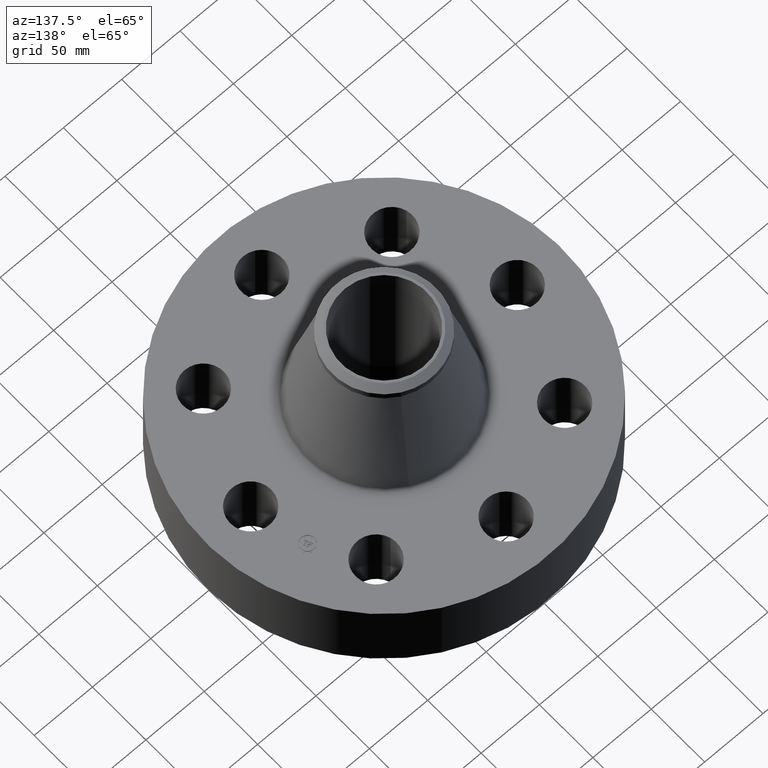
[diagram: clean part render]
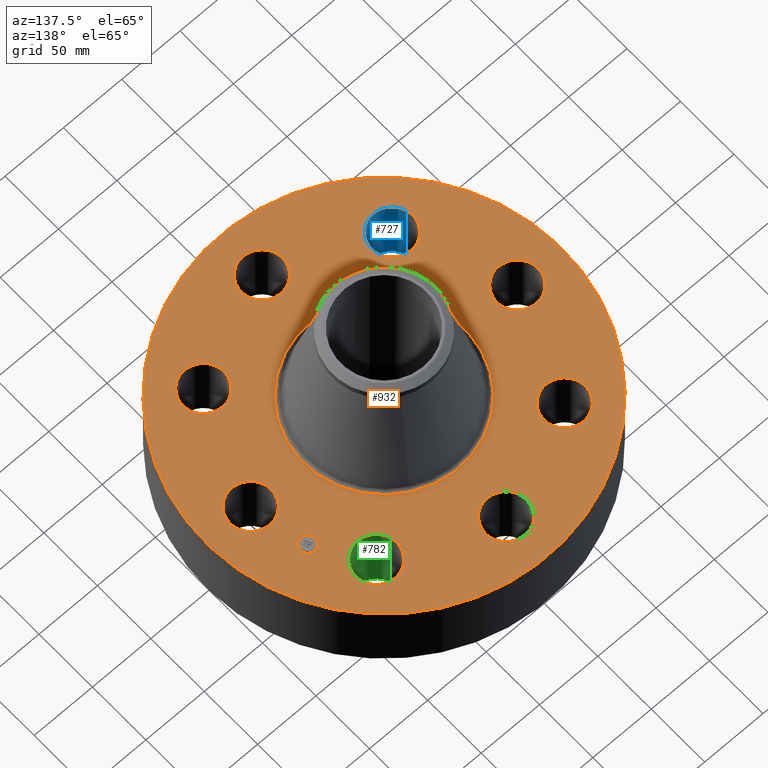
[diagram: same view with three faces highlighted in distinct colors, each labeled with its STEP entity id]
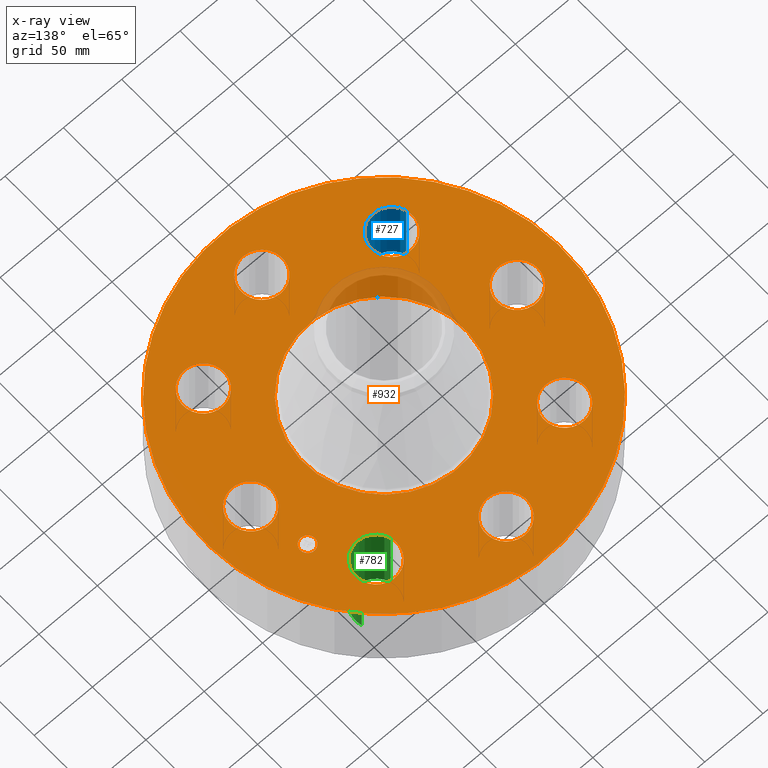
[diagram: x-ray of the same camera — body ghosted, the three highlighted faces saturated]
A machine part, auxiliary view with three faces highlighted in distinct colors.
The next image is the same camera in x-ray (body ghosted, the three faces saturated) — at least one of them is partly hidden behind the body in this view.
Their STEP definitions:

[orange] entity #932 — the highlighted planar face has unit normal (0, 0, -1).
#65=AXIS2_PLACEMENT_3D('Circle Axis2P3D',#63,#64,$) ;
#82=AXIS2_PLACEMENT_3D('Circle Axis2P3D',#80,#81,$) ;
#115=AXIS2_PLACEMENT_3D('Circle Axis2P3D',#113,#114,$) ;
#139=AXIS2_PLACEMENT_3D('Circle Axis2P3D',#137,#138,$) ;
#156=AXIS2_PLACEMENT_3D('Circle Axis2P3D',#154,#155,$) ;
#191=AXIS2_PLACEMENT_3D('Circle Axis2P3D',#189,#190,$) ;
#589=AXIS2_PLACEMENT_3D('Circle Axis2P3D',#587,#588,$) ;
#601=AXIS2_PLACEMENT_3D('Circle Axis2P3D',#599,#600,$) ;
#632=AXIS2_PLACEMENT_3D('Circle Axis2P3D',#630,#631,$) ;
#644=AXIS2_PLACEMENT_3D('Circle Axis2P3D',#642,#643,$) ;
#675=AXIS2_PLACEMENT_3D('Circle Axis2P3D',#673,#674,$) ;
#687=AXIS2_PLACEMENT_3D('Circle Axis2P3D',#685,#686,$) ;
#718=AXIS2_PLACEMENT_3D('Circle Axis2P3D',#716,#717,$) ;
#730=AXIS2_PLACEMENT_3D('Circle Axis2P3D',#728,#729,$) ;
#761=AXIS2_PLACEMENT_3D('Circle Axis2P3D',#759,#760,$) ;
#773=AXIS2_PLACEMENT_3D('Circle Axis2P3D',#771,#772,$) ;
#804=AXIS2_PLACEMENT_3D('Circle Axis2P3D',#802,#803,$) ;
#816=AXIS2_PLACEMENT_3D('Circle Axis2P3D',#814,#815,$) ;
#847=AXIS2_PLACEMENT_3D('Circle Axis2P3D',#845,#846,$) ;
#859=AXIS2_PLACEMENT_3D('Circle Axis2P3D',#857,#858,$) ;
#872=AXIS2_PLACEMENT_3D('Plane Axis2P3D',#869,#870,#871) ;
#916=AXIS2_PLACEMENT_3D('Circle Axis2P3D',#914,#915,$) ;
#925=AXIS2_PLACEMENT_3D('Circle Axis2P3D',#923,#924,$) ;
#46=CARTESIAN_POINT('Vertex',(3.89446803231,0.330803621638,2.62000000001)) ;
#60=CARTESIAN_POINT('Vertex',(5.10553196772,-0.330803621638,2.62000000001)) ;
#63=CARTESIAN_POINT('Axis2P3D Location',(4.50000000002,0.,2.62000000001)) ;
#80=CARTESIAN_POINT('Axis2P3D Location',(4.50000000002,0.,2.62000000001)) ;
#110=CARTESIAN_POINT('Vertex',(-2.87655323164,-5.26549537136,2.62000000001)) ;
#113=CARTESIAN_POINT('Axis2P3D Location',(0.,0.,2.62000000001)) ;
#117=CARTESIAN_POINT('Vertex',(2.87655323164,5.26549537136,2.62000000001)) ;
#137=CARTESIAN_POINT('Axis2P3D Location',(0.,0.,2.62000000001)) ;
#154=CARTESIAN_POINT('Axis2P3D Location',(0.,0.,2.62000000001)) ;
#158=CARTESIAN_POINT('Vertex',(1.30369700467,2.38640135989,2.62000000001)) ;
#160=CARTESIAN_POINT('Vertex',(-1.30369700467,-2.38640135989,2.62000000001)) ;
#189=CARTESIAN_POINT('Axis2P3D Location',(0.,0.,2.62000000001)) ;
#577=CARTESIAN_POINT('Vertex',(-2.98771823886,2.51989127066,2.62000000001)) ;
#584=CARTESIAN_POINT('Vertex',(-3.37624279184,3.84406976004,2.62000000001)) ;
#587=CARTESIAN_POINT('Axis2P3D Location',(-3.18198051535,3.18198051535,2.62000000001)) ;
#599=CARTESIAN_POINT('Axis2P3D Location',(-3.18198051535,3.18198051535,2.62000000001)) ;
#620=CARTESIAN_POINT('Vertex',(0.330803621638,-3.89446803231,2.62000000001)) ;
#627=CARTESIAN_POINT('Vertex',(-0.330803621638,-5.10553196772,2.62000000001)) ;
#630=CARTESIAN_POINT('Axis2P3D Location',(-2.83936939293E-016,-4.50000000002,2.62000000001)) ;
#642=CARTESIAN_POINT('Axis2P3D Location',(-2.83936939293E-016,-4.50000000002,2.62000000001)) ;
#663=CARTESIAN_POINT('Vertex',(-0.330803621638,3.89446803231,2.62000000001)) ;
#670=CARTESIAN_POINT('Vertex',(0.330803621638,5.10553196772,2.62000000001)) ;
#673=CARTESIAN_POINT('Axis2P3D Location',(-2.67154120325E-016,4.50000000002,2.62000000001)) ;
#685=CARTESIAN_POINT('Axis2P3D Location',(-2.67154120325E-016,4.50000000002,2.62000000001)) ;
#706=CARTESIAN_POINT('Vertex',(-2.51989127066,-2.98771823886,2.62000000001)) ;
#713=CARTESIAN_POINT('Vertex',(-3.84406976004,-3.37624279184,2.62000000001)) ;
#716=CARTESIAN_POINT('Axis2P3D Location',(-3.18198051535,-3.18198051535,2.62000000001)) ;
#728=CARTESIAN_POINT('Axis2P3D Location',(-3.18198051535,-3.18198051535,2.62000000001)) ;
#749=CARTESIAN_POINT('Vertex',(2.51989127066,2.98771823886,2.62000000001)) ;
#756=CARTESIAN_POINT('Vertex',(3.84406976004,3.37624279184,2.62000000001)) ;
#759=CARTESIAN_POINT('Axis2P3D Location',(3.18198051535,3.18198051535,2.62000000001)) ;
#771=CARTESIAN_POINT('Axis2P3D Location',(3.18198051535,3.18198051535,2.62000000001)) ;
#792=CARTESIAN_POINT('Vertex',(-3.89446803231,-0.330803621638,2.62000000001)) ;
#799=CARTESIAN_POINT('Vertex',(-5.10553196772,0.330803621638,2.62000000001)) ;
#802=CARTESIAN_POINT('Axis2P3D Location',(-4.50000000002,-5.51091059619E-016,2.62000000001)) ;
#814=CARTESIAN_POINT('Axis2P3D Location',(-4.50000000002,-5.51091059619E-016,2.62000000001)) ;
#835=CARTESIAN_POINT('Vertex',(2.98771823886,-2.51989127066,2.62000000001)) ;
#842=CARTESIAN_POINT('Vertex',(3.37624279184,-3.84406976004,2.62000000001)) ;
#845=CARTESIAN_POINT('Axis2P3D Location',(3.18198051535,-3.18198051535,2.62000000001)) ;
#857=CARTESIAN_POINT('Axis2P3D Location',(3.18198051535,-3.18198051535,2.62000000001)) ;
#869=CARTESIAN_POINT('Axis2P3D Location',(0.,6.00000000002,2.62000000001)) ;
#914=CARTESIAN_POINT('Axis2P3D Location',(4.15745789632,1.72207544565,2.62000000001)) ;
#918=CARTESIAN_POINT('Vertex',(4.06274374681,1.95073562995,2.62000000001)) ;
#920=CARTESIAN_POINT('Vertex',(4.25217204583,1.49341526135,2.62000000001)) ;
#923=CARTESIAN_POINT('Axis2P3D Location',(4.15745789632,1.72207544565,2.62000000001)) ;
#64=DIRECTION('Axis2P3D Direction',(0.,-0.,-0.0393700787402)) ;
#81=DIRECTION('Axis2P3D Direction',(0.,-0.,-0.0393700787402)) ;
#114=DIRECTION('Axis2P3D Direction',(0.,0.,-0.0393700787402)) ;
#138=DIRECTION('Axis2P3D Direction',(0.,0.,-0.0393700787402)) ;
#155=DIRECTION('Axis2P3D Direction',(0.,0.,-0.0393700787402)) ;
#190=DIRECTION('Axis2P3D Direction',(0.,0.,-0.0393700787402)) ;
#588=DIRECTION('Axis2P3D Direction',(0.,0.,-0.0393700787402)) ;
#600=DIRECTION('Axis2P3D Direction',(0.,0.,-0.0393700787402)) ;
#631=DIRECTION('Axis2P3D Direction',(0.,-0.,-0.0393700787402)) ;
#643=DIRECTION('Axis2P3D Direction',(0.,-0.,-0.0393700787402)) ;
#674=DIRECTION('Axis2P3D Direction',(0.,0.,-0.0393700787402)) ;
#686=DIRECTION('Axis2P3D Direction',(0.,0.,-0.0393700787402)) ;
#717=DIRECTION('Axis2P3D Direction',(-0.,0.,-0.0393700787402)) ;
#729=DIRECTION('Axis2P3D Direction',(-0.,0.,-0.0393700787402)) ;
#760=DIRECTION('Axis2P3D Direction',(0.,0.,-0.0393700787402)) ;
#772=DIRECTION('Axis2P3D Direction',(0.,0.,-0.0393700787402)) ;
#803=DIRECTION('Axis2P3D Direction',(-0.,0.,-0.0393700787402)) ;
#815=DIRECTION('Axis2P3D Direction',(-0.,0.,-0.0393700787402)) ;
#846=DIRECTION('Axis2P3D Direction',(0.,-0.,-0.0393700787402)) ;
#858=DIRECTION('Axis2P3D Direction',(0.,-0.,-0.0393700787402)) ;
#870=DIRECTION('Axis2P3D Direction',(0.,0.,-0.0393700787402)) ;
#871=DIRECTION('Axis2P3D XDirection',(0.0393700787402,0.,0.)) ;
#915=DIRECTION('Axis2P3D Direction',(0.,0.,-0.0393700787402)) ;
#924=DIRECTION('Axis2P3D Direction',(0.,0.,-0.0393700787402)) ;
#875=ORIENTED_EDGE('',*,*,#141,.F.) ;
#876=ORIENTED_EDGE('',*,*,#119,.F.) ;
#879=ORIENTED_EDGE('',*,*,#67,.T.) ;
#880=ORIENTED_EDGE('',*,*,#84,.T.) ;
#883=ORIENTED_EDGE('',*,*,#193,.T.) ;
#884=ORIENTED_EDGE('',*,*,#162,.T.) ;
#887=ORIENTED_EDGE('',*,*,#861,.T.) ;
#888=ORIENTED_EDGE('',*,*,#849,.T.) ;
#891=ORIENTED_EDGE('',*,*,#646,.T.) ;
#892=ORIENTED_EDGE('',*,*,#634,.T.) ;
#895=ORIENTED_EDGE('',*,*,#732,.T.) ;
#896=ORIENTED_EDGE('',*,*,#720,.T.) ;
#899=ORIENTED_EDGE('',*,*,#818,.T.) ;
#900=ORIENTED_EDGE('',*,*,#806,.T.) ;
#903=ORIENTED_EDGE('',*,*,#603,.T.) ;
#904=ORIENTED_EDGE('',*,*,#591,.T.) ;
#907=ORIENTED_EDGE('',*,*,#689,.T.) ;
#908=ORIENTED_EDGE('',*,*,#677,.T.) ;
#911=ORIENTED_EDGE('',*,*,#775,.T.) ;
#912=ORIENTED_EDGE('',*,*,#763,.T.) ;
#929=ORIENTED_EDGE('',*,*,#922,.T.) ;
#930=ORIENTED_EDGE('',*,*,#927,.T.) ;
#881=FACE_BOUND('',#878,.T.) ;
#885=FACE_BOUND('',#882,.T.) ;
#889=FACE_BOUND('',#886,.T.) ;
#893=FACE_BOUND('',#890,.T.) ;
#897=FACE_BOUND('',#894,.T.) ;
#901=FACE_BOUND('',#898,.T.) ;
#905=FACE_BOUND('',#902,.T.) ;
#909=FACE_BOUND('',#906,.T.) ;
#913=FACE_BOUND('',#910,.T.) ;
#931=FACE_BOUND('',#928,.T.) ;
#932=ADVANCED_FACE('PartBody',(#877,#881,#885,#889,#893,#897,#901,#905,#909,#913,#931),#873,.F.) ;
#66=CIRCLE('generated circle',#65,0.690000000003) ;
#83=CIRCLE('generated circle',#82,0.690000000003) ;
#116=CIRCLE('generated circle',#115,6.00000000002) ;
#140=CIRCLE('generated circle',#139,6.00000000002) ;
#157=CIRCLE('generated circle',#156,2.71928985775) ;
#192=CIRCLE('generated circle',#191,2.71928985775) ;
#590=CIRCLE('generated circle',#589,0.690000000003) ;
#602=CIRCLE('generated circle',#601,0.690000000003) ;
#633=CIRCLE('generated circle',#632,0.690000000003) ;
#645=CIRCLE('generated circle',#644,0.690000000003) ;
#676=CIRCLE('generated circle',#675,0.690000000003) ;
#688=CIRCLE('generated circle',#687,0.690000000003) ;
#719=CIRCLE('generated circle',#718,0.690000000003) ;
#731=CIRCLE('generated circle',#730,0.690000000003) ;
#762=CIRCLE('generated circle',#761,0.690000000003) ;
#774=CIRCLE('generated circle',#773,0.690000000003) ;
#805=CIRCLE('generated circle',#804,0.690000000003) ;
#817=CIRCLE('generated circle',#816,0.690000000003) ;
#848=CIRCLE('generated circle',#847,0.690000000003) ;
#860=CIRCLE('generated circle',#859,0.690000000003) ;
#917=CIRCLE('generated circle',#916,0.247500000001) ;
#926=CIRCLE('generated circle',#925,0.247500000001) ;
#67=EDGE_CURVE('',#47,#61,#66,.T.) ;
#84=EDGE_CURVE('',#61,#47,#83,.T.) ;
#119=EDGE_CURVE('',#111,#118,#116,.T.) ;
#141=EDGE_CURVE('',#118,#111,#140,.T.) ;
#162=EDGE_CURVE('',#159,#161,#157,.T.) ;
#193=EDGE_CURVE('',#161,#159,#192,.T.) ;
#591=EDGE_CURVE('',#578,#585,#590,.T.) ;
#603=EDGE_CURVE('',#585,#578,#602,.T.) ;
#634=EDGE_CURVE('',#621,#628,#633,.T.) ;
#646=EDGE_CURVE('',#628,#621,#645,.T.) ;
#677=EDGE_CURVE('',#664,#671,#676,.T.) ;
#689=EDGE_CURVE('',#671,#664,#688,.T.) ;
#720=EDGE_CURVE('',#707,#714,#719,.T.) ;
#732=EDGE_CURVE('',#714,#707,#731,.T.) ;
#763=EDGE_CURVE('',#750,#757,#762,.T.) ;
#775=EDGE_CURVE('',#757,#750,#774,.T.) ;
#806=EDGE_CURVE('',#793,#800,#805,.T.) ;
#818=EDGE_CURVE('',#800,#793,#817,.T.) ;
#849=EDGE_CURVE('',#836,#843,#848,.T.) ;
#861=EDGE_CURVE('',#843,#836,#860,.T.) ;
#922=EDGE_CURVE('',#919,#921,#917,.T.) ;
#927=EDGE_CURVE('',#921,#919,#926,.T.) ;
#874=EDGE_LOOP('',(#875,#876)) ;
#878=EDGE_LOOP('',(#879,#880)) ;
#882=EDGE_LOOP('',(#883,#884)) ;
#886=EDGE_LOOP('',(#887,#888)) ;
#890=EDGE_LOOP('',(#891,#892)) ;
#894=EDGE_LOOP('',(#895,#896)) ;
#898=EDGE_LOOP('',(#899,#900)) ;
#902=EDGE_LOOP('',(#903,#904)) ;
#906=EDGE_LOOP('',(#907,#908)) ;
#910=EDGE_LOOP('',(#911,#912)) ;
#928=EDGE_LOOP('',(#929,#930)) ;
#877=FACE_OUTER_BOUND('',#874,.T.) ;
#873=PLANE('',#872) ;
#47=VERTEX_POINT('',#46) ;
#61=VERTEX_POINT('',#60) ;
#111=VERTEX_POINT('',#110) ;
#118=VERTEX_POINT('',#117) ;
#159=VERTEX_POINT('',#158) ;
#161=VERTEX_POINT('',#160) ;
#578=VERTEX_POINT('',#577) ;
#585=VERTEX_POINT('',#584) ;
#621=VERTEX_POINT('',#620) ;
#628=VERTEX_POINT('',#627) ;
#664=VERTEX_POINT('',#663) ;
#671=VERTEX_POINT('',#670) ;
#707=VERTEX_POINT('',#706) ;
#714=VERTEX_POINT('',#713) ;
#750=VERTEX_POINT('',#749) ;
#757=VERTEX_POINT('',#756) ;
#793=VERTEX_POINT('',#792) ;
#800=VERTEX_POINT('',#799) ;
#836=VERTEX_POINT('',#835) ;
#843=VERTEX_POINT('',#842) ;
#919=VERTEX_POINT('',#918) ;
#921=VERTEX_POINT('',#920) ;

[blue] entity #727 — the highlighted cylindrical surface (edge-blend (fillet) strip) has radius 17.526 mm, axis along (-0, 0, -1).
#479=AXIS2_PLACEMENT_3D('Circle Axis2P3D',#477,#478,$) ;
#700=AXIS2_PLACEMENT_3D('Cylinder Axis2P3D',#697,#698,#699) ;
#718=AXIS2_PLACEMENT_3D('Circle Axis2P3D',#716,#717,$) ;
#477=CARTESIAN_POINT('Axis2P3D Location',(-3.18198051535,-3.18198051535,0.)) ;
#481=CARTESIAN_POINT('Vertex',(-2.51989127066,-2.98771823886,0.)) ;
#483=CARTESIAN_POINT('Vertex',(-3.84406976004,-3.37624279184,0.)) ;
#697=CARTESIAN_POINT('Axis2P3D Location',(-3.18198051535,-3.18198051535,2.61606299214)) ;
#702=CARTESIAN_POINT('Line Origine',(-2.51989127066,-2.98771823886,1.31000000001)) ;
#706=CARTESIAN_POINT('Vertex',(-2.51989127066,-2.98771823886,2.62000000001)) ;
#709=CARTESIAN_POINT('Line Origine',(-3.84406976004,-3.37624279184,1.31000000001)) ;
#713=CARTESIAN_POINT('Vertex',(-3.84406976004,-3.37624279184,2.62000000001)) ;
#716=CARTESIAN_POINT('Axis2P3D Location',(-3.18198051535,-3.18198051535,2.62000000001)) ;
#478=DIRECTION('Axis2P3D Direction',(0.,0.,-0.0393700787402)) ;
#698=DIRECTION('Axis2P3D Direction',(-0.,0.,-0.0393700787402)) ;
#699=DIRECTION('Axis2P3D XDirection',(-0.0377775444876,-0.0110842335096,0.)) ;
#703=DIRECTION('Vector Direction',(0.,0.,-0.0393700787402)) ;
#710=DIRECTION('Vector Direction',(0.,0.,-0.0393700787402)) ;
#717=DIRECTION('Axis2P3D Direction',(-0.,0.,-0.0393700787402)) ;
#704=VECTOR('Line Direction',#703,0.0393700787402) ;
#711=VECTOR('Line Direction',#710,0.0393700787402) ;
#722=ORIENTED_EDGE('',*,*,#708,.F.) ;
#723=ORIENTED_EDGE('',*,*,#485,.T.) ;
#724=ORIENTED_EDGE('',*,*,#715,.T.) ;
#725=ORIENTED_EDGE('',*,*,#720,.F.) ;
#727=ADVANCED_FACE('PartBody',(#726),#701,.F.) ;
#480=CIRCLE('generated circle',#479,0.690000000003) ;
#719=CIRCLE('generated circle',#718,0.690000000003) ;
#701=CYLINDRICAL_SURFACE('generated cylinder',#700,0.690000000003) ;
#485=EDGE_CURVE('',#482,#484,#480,.T.) ;
#708=EDGE_CURVE('',#482,#707,#705,.F.) ;
#715=EDGE_CURVE('',#484,#714,#712,.F.) ;
#720=EDGE_CURVE('',#707,#714,#719,.T.) ;
#721=EDGE_LOOP('',(#722,#723,#724,#725)) ;
#726=FACE_OUTER_BOUND('',#721,.T.) ;
#705=LINE('Line',#702,#704) ;
#712=LINE('Line',#709,#711) ;
#482=VERTEX_POINT('',#481) ;
#484=VERTEX_POINT('',#483) ;
#707=VERTEX_POINT('',#706) ;
#714=VERTEX_POINT('',#713) ;

[green] entity #782 — the highlighted cylindrical surface (edge-blend (fillet) strip) has radius 17.526 mm, axis along (0, 0, -1).
#560=AXIS2_PLACEMENT_3D('Circle Axis2P3D',#558,#559,$) ;
#743=AXIS2_PLACEMENT_3D('Cylinder Axis2P3D',#740,#741,#742) ;
#773=AXIS2_PLACEMENT_3D('Circle Axis2P3D',#771,#772,$) ;
#553=CARTESIAN_POINT('Vertex',(2.51989127066,2.98771823886,0.)) ;
#555=CARTESIAN_POINT('Vertex',(3.84406976004,3.37624279184,0.)) ;
#558=CARTESIAN_POINT('Axis2P3D Location',(3.18198051535,3.18198051535,0.)) ;
#740=CARTESIAN_POINT('Axis2P3D Location',(3.18198051535,3.18198051535,2.61606299214)) ;
#745=CARTESIAN_POINT('Line Origine',(2.51989127066,2.98771823886,1.31000000001)) ;
#749=CARTESIAN_POINT('Vertex',(2.51989127066,2.98771823886,2.62000000001)) ;
#752=CARTESIAN_POINT('Line Origine',(3.84406976004,3.37624279184,1.31000000001)) ;
#756=CARTESIAN_POINT('Vertex',(3.84406976004,3.37624279184,2.62000000001)) ;
#771=CARTESIAN_POINT('Axis2P3D Location',(3.18198051535,3.18198051535,2.62000000001)) ;
#559=DIRECTION('Axis2P3D Direction',(0.,0.,-0.0393700787402)) ;
#741=DIRECTION('Axis2P3D Direction',(0.,0.,-0.0393700787402)) ;
#742=DIRECTION('Axis2P3D XDirection',(0.0377775444876,0.0110842335096,0.)) ;
#746=DIRECTION('Vector Direction',(0.,0.,-0.0393700787402)) ;
#753=DIRECTION('Vector Direction',(0.,0.,-0.0393700787402)) ;
#772=DIRECTION('Axis2P3D Direction',(0.,0.,-0.0393700787402)) ;
#747=VECTOR('Line Direction',#746,0.0393700787402) ;
#754=VECTOR('Line Direction',#753,0.0393700787402) ;
#777=ORIENTED_EDGE('',*,*,#758,.F.) ;
#778=ORIENTED_EDGE('',*,*,#562,.T.) ;
#779=ORIENTED_EDGE('',*,*,#751,.T.) ;
#780=ORIENTED_EDGE('',*,*,#775,.F.) ;
#782=ADVANCED_FACE('PartBody',(#781),#744,.F.) ;
#561=CIRCLE('generated circle',#560,0.690000000003) ;
#774=CIRCLE('generated circle',#773,0.690000000003) ;
#744=CYLINDRICAL_SURFACE('generated cylinder',#743,0.690000000003) ;
#562=EDGE_CURVE('',#556,#554,#561,.T.) ;
#751=EDGE_CURVE('',#554,#750,#748,.F.) ;
#758=EDGE_CURVE('',#556,#757,#755,.F.) ;
#775=EDGE_CURVE('',#757,#750,#774,.T.) ;
#776=EDGE_LOOP('',(#777,#778,#779,#780)) ;
#781=FACE_OUTER_BOUND('',#776,.T.) ;
#748=LINE('Line',#745,#747) ;
#755=LINE('Line',#752,#754) ;
#554=VERTEX_POINT('',#553) ;
#556=VERTEX_POINT('',#555) ;
#750=VERTEX_POINT('',#749) ;
#757=VERTEX_POINT('',#756) ;